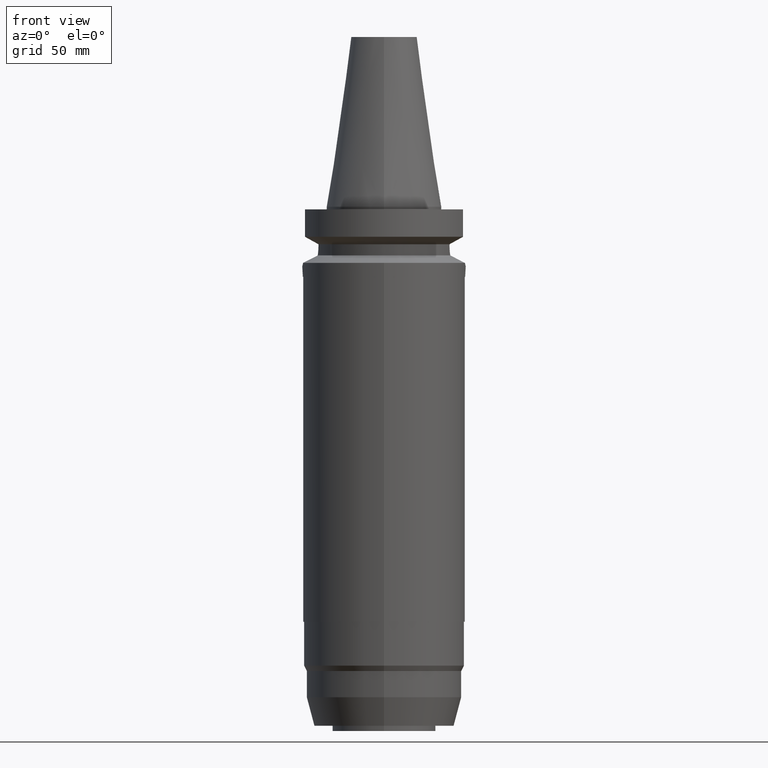
[diagram: clean part render]
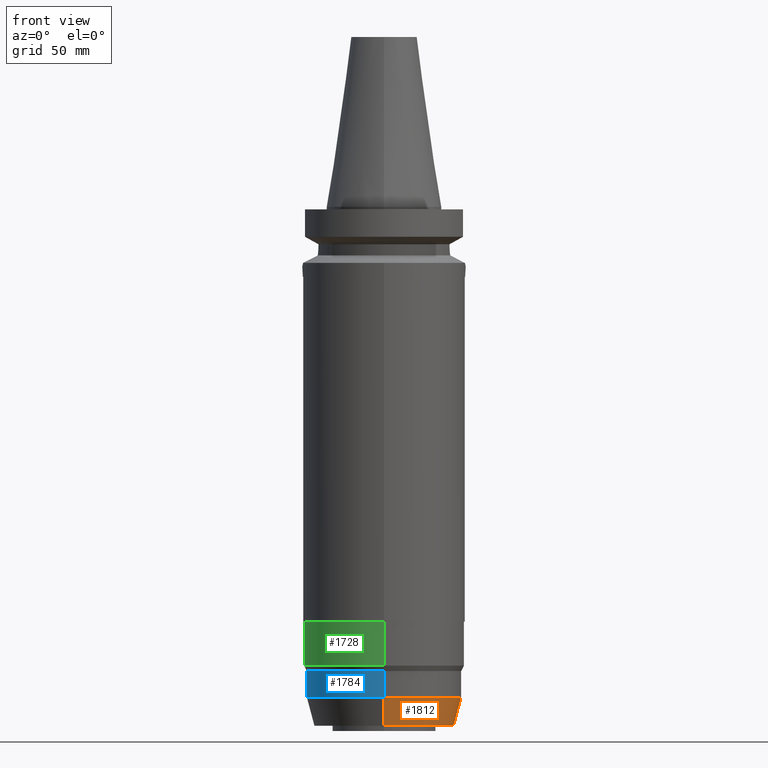
[diagram: same view with three faces highlighted in distinct colors, each labeled with its STEP entity id]
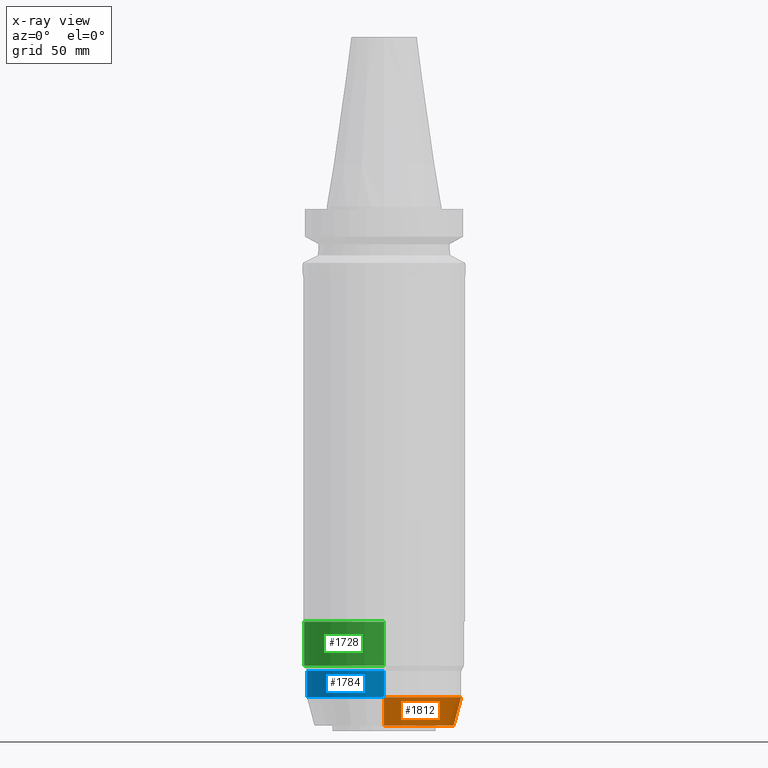
[diagram: x-ray of the same camera — body ghosted, the three highlighted faces saturated]
A machine part, front view with three faces highlighted in distinct colors.
The next image is the same camera in x-ray (body ghosted, the three faces saturated) — at least one of them is partly hidden behind the body in this view.
Their STEP definitions:

[orange] entity #1812 — the highlighted conical surface has half-angle 15 deg.
#776=DIRECTION('',(0.E0,-2.588190451024E-1,-9.659258262891E-1));
#777=VECTOR('',#776,1.138803798451E1);
#778=CARTESIAN_POINT('',(0.E0,2.995E1,-1.89E2));
#779=LINE('',#778,#777);
#783=CARTESIAN_POINT('',(0.E0,-1.157291225194E-14,-1.89E2));
#784=DIRECTION('',(0.E0,0.E0,1.E0));
#785=DIRECTION('',(0.E0,-1.E0,0.E0));
#786=AXIS2_PLACEMENT_3D('',#783,#784,#785);
#799=DIRECTION('',(0.E0,2.588190451024E-1,-9.659258262891E-1));
#800=VECTOR('',#799,1.138803798451E1);
#801=CARTESIAN_POINT('',(0.E0,-2.995E1,-1.89E2));
#802=LINE('',#801,#800);
#806=CARTESIAN_POINT('',(0.E0,-1.157291225194E-14,-2.E2));
#807=DIRECTION('',(0.E0,0.E0,1.E0));
#808=DIRECTION('',(0.E0,-1.E0,0.E0));
#809=AXIS2_PLACEMENT_3D('',#806,#807,#808);
#1114=CARTESIAN_POINT('',(0.E0,-2.700255888326E1,-2.E2));
#1115=CARTESIAN_POINT('',(0.E0,2.700255888326E1,-2.E2));
#1116=VERTEX_POINT('',#1114);
#1117=VERTEX_POINT('',#1115);
#1118=CARTESIAN_POINT('',(0.E0,2.995E1,-1.89E2));
#1119=VERTEX_POINT('',#1118);
#1120=CARTESIAN_POINT('',(0.E0,-2.995E1,-1.89E2));
#1121=VERTEX_POINT('',#1120);
#1798=CARTESIAN_POINT('',(0.E0,-1.157291225194E-14,-1.945E2));
#1799=DIRECTION('',(0.E0,0.E0,1.E0));
#1800=DIRECTION('',(0.E0,1.E0,0.E0));
#1801=AXIS2_PLACEMENT_3D('',#1798,#1799,#1800);
#1802=CONICAL_SURFACE('',#1801,2.847627944163E1,1.5E1);
#1804=ORIENTED_EDGE('',*,*,#1803,.T.);
#1806=ORIENTED_EDGE('',*,*,#1805,.F.);
#1808=ORIENTED_EDGE('',*,*,#1807,.F.);
#1809=ORIENTED_EDGE('',*,*,#1791,.T.);
#1810=EDGE_LOOP('',(#1804,#1806,#1808,#1809));
#1811=FACE_OUTER_BOUND('',#1810,.F.);
#787=CIRCLE('',#786,2.995E1);
#810=CIRCLE('',#809,2.700255888326E1);
#1791=EDGE_CURVE('',#1121,#1119,#787,.T.);
#1803=EDGE_CURVE('',#1119,#1117,#779,.T.);
#1805=EDGE_CURVE('',#1116,#1117,#810,.T.);
#1807=EDGE_CURVE('',#1121,#1116,#802,.T.);
#1812=ADVANCED_FACE('',(#1811),#1802,.T.);

[blue] entity #1784 — the highlighted cylindrical surface (partial cylindrical patch) has radius 29.95 mm, axis along (0, 0, -1).
#754=CARTESIAN_POINT('',(0.E0,0.E0,-1.789E2));
#755=DIRECTION('',(0.E0,0.E0,-1.E0));
#756=DIRECTION('',(0.E0,-1.E0,0.E0));
#757=AXIS2_PLACEMENT_3D('',#754,#755,#756);
#762=DIRECTION('',(0.E0,7.865215629506E-13,-1.E0));
#763=VECTOR('',#762,1.01E1);
#764=CARTESIAN_POINT('',(0.E0,-2.995000000001E1,-1.789E2));
#765=LINE('',#764,#763);
#769=DIRECTION('',(0.E0,-7.879285782689E-13,-1.E0));
#770=VECTOR('',#769,1.01E1);
#771=CARTESIAN_POINT('',(0.E0,2.995000000001E1,-1.789E2));
#772=LINE('',#771,#770);
#791=CARTESIAN_POINT('',(0.E0,-1.157291225194E-14,-1.89E2));
#792=DIRECTION('',(0.E0,0.E0,1.E0));
#793=DIRECTION('',(0.E0,1.E0,0.E0));
#794=AXIS2_PLACEMENT_3D('',#791,#792,#793);
#1118=CARTESIAN_POINT('',(0.E0,2.995E1,-1.89E2));
#1119=VERTEX_POINT('',#1118);
#1120=CARTESIAN_POINT('',(0.E0,-2.995E1,-1.89E2));
#1121=VERTEX_POINT('',#1120);
#1122=CARTESIAN_POINT('',(0.E0,2.995000000001E1,-1.789E2));
#1123=VERTEX_POINT('',#1122);
#1124=CARTESIAN_POINT('',(0.E0,-2.995000000002E1,-1.789E2));
#1125=VERTEX_POINT('',#1124);
#1770=CARTESIAN_POINT('',(0.E0,2.189301082836E-14,7.877E1));
#1771=DIRECTION('',(0.E0,0.E0,-1.E0));
#1772=DIRECTION('',(0.E0,-1.E0,0.E0));
#1773=AXIS2_PLACEMENT_3D('',#1770,#1771,#1772);
#1774=CYLINDRICAL_SURFACE('',#1773,2.995E1);
#1776=ORIENTED_EDGE('',*,*,#1775,.F.);
#1777=ORIENTED_EDGE('',*,*,#1765,.F.);
#1779=ORIENTED_EDGE('',*,*,#1778,.T.);
#1781=ORIENTED_EDGE('',*,*,#1780,.F.);
#1782=EDGE_LOOP('',(#1776,#1777,#1779,#1781));
#1783=FACE_OUTER_BOUND('',#1782,.F.);
#758=CIRCLE('',#757,2.995000000002E1);
#795=CIRCLE('',#794,2.995E1);
#1765=EDGE_CURVE('',#1125,#1123,#758,.T.);
#1775=EDGE_CURVE('',#1123,#1119,#772,.T.);
#1778=EDGE_CURVE('',#1125,#1121,#765,.T.);
#1780=EDGE_CURVE('',#1119,#1121,#795,.T.);
#1784=ADVANCED_FACE('',(#1783),#1774,.T.);

[green] entity #1728 — the highlighted cylindrical surface (partial cylindrical patch) has radius 31 mm, axis along (0, 0, -1).
#686=CARTESIAN_POINT('',(0.E0,2.189301082836E-14,-1.599E2));
#687=DIRECTION('',(0.E0,0.E0,-1.E0));
#688=DIRECTION('',(0.E0,-1.E0,0.E0));
#689=AXIS2_PLACEMENT_3D('',#686,#687,#688);
#702=DIRECTION('',(0.E0,-6.850277166050E-13,-1.E0));
#703=VECTOR('',#702,1.691230737931E1);
#704=CARTESIAN_POINT('',(0.E0,-3.1E1,-1.599E2));
#705=LINE('',#704,#703);
#709=DIRECTION('',(0.E0,6.846075830775E-13,-1.E0));
#710=VECTOR('',#709,1.691230737931E1);
#711=CARTESIAN_POINT('',(0.E0,3.1E1,-1.599E2));
#712=LINE('',#711,#710);
#739=CARTESIAN_POINT('',(0.E0,0.E0,-1.768123073793E2));
#740=DIRECTION('',(0.E0,0.E0,1.E0));
#741=DIRECTION('',(0.E0,1.E0,0.E0));
#742=AXIS2_PLACEMENT_3D('',#739,#740,#741);
#1126=CARTESIAN_POINT('',(0.E0,3.100000000001E1,-1.768123073793E2));
#1127=VERTEX_POINT('',#1126);
#1128=CARTESIAN_POINT('',(0.E0,-3.100000000001E1,-1.768123073793E2));
#1129=VERTEX_POINT('',#1128);
#1130=CARTESIAN_POINT('',(0.E0,3.1E1,-1.599E2));
#1131=VERTEX_POINT('',#1130);
#1132=CARTESIAN_POINT('',(0.E0,-3.1E1,-1.599E2));
#1133=VERTEX_POINT('',#1132);
#1714=CARTESIAN_POINT('',(0.E0,2.189301082836E-14,7.877E1));
#1715=DIRECTION('',(0.E0,0.E0,-1.E0));
#1716=DIRECTION('',(0.E0,-1.E0,0.E0));
#1717=AXIS2_PLACEMENT_3D('',#1714,#1715,#1716);
#1718=CYLINDRICAL_SURFACE('',#1717,3.1E1);
#1720=ORIENTED_EDGE('',*,*,#1719,.F.);
#1721=ORIENTED_EDGE('',*,*,#1707,.F.);
#1723=ORIENTED_EDGE('',*,*,#1722,.T.);
#1725=ORIENTED_EDGE('',*,*,#1724,.F.);
#1726=EDGE_LOOP('',(#1720,#1721,#1723,#1725));
#1727=FACE_OUTER_BOUND('',#1726,.F.);
#690=CIRCLE('',#689,3.1E1);
#743=CIRCLE('',#742,3.100000000002E1);
#1707=EDGE_CURVE('',#1133,#1131,#690,.T.);
#1719=EDGE_CURVE('',#1131,#1127,#712,.T.);
#1722=EDGE_CURVE('',#1133,#1129,#705,.T.);
#1724=EDGE_CURVE('',#1127,#1129,#743,.T.);
#1728=ADVANCED_FACE('',(#1727),#1718,.T.);